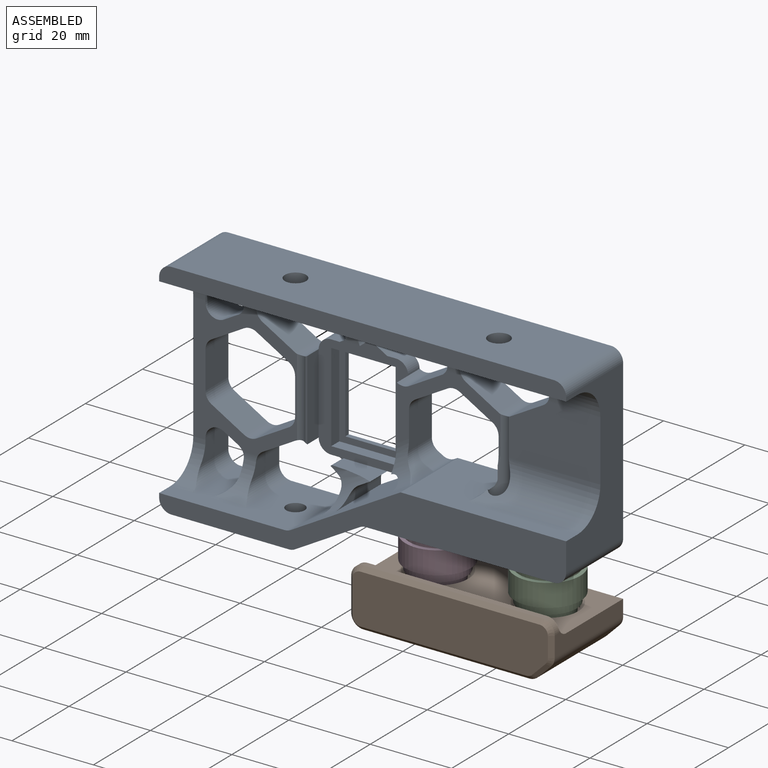
[diagram: assembled view]
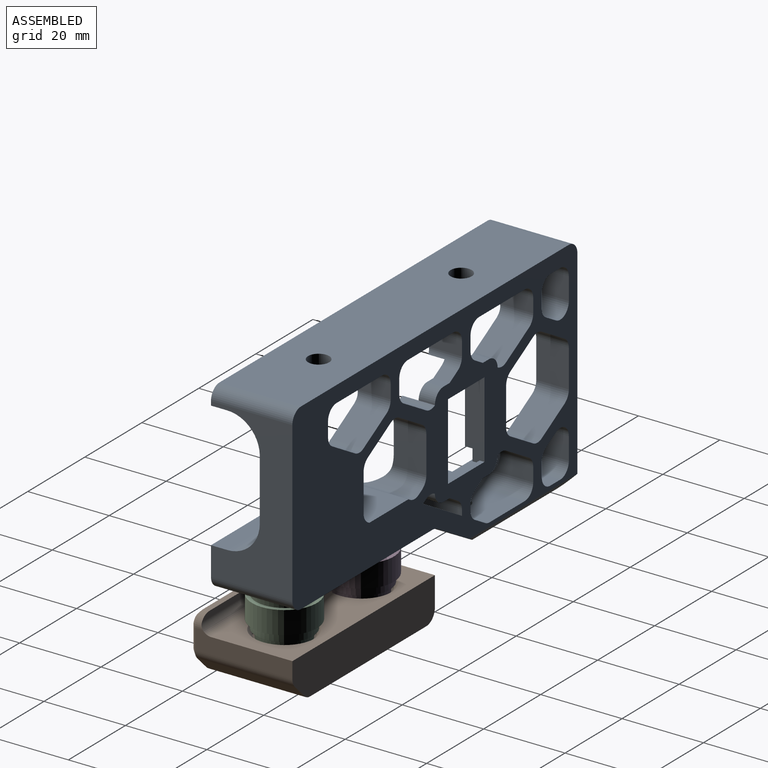
[diagram: assembled view, second angle]
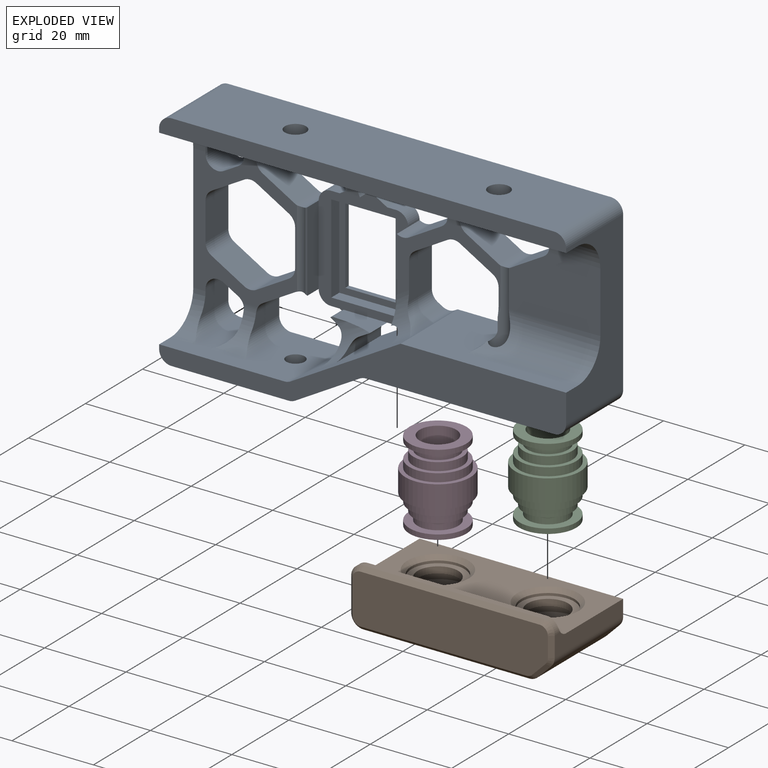
[diagram: exploded view]
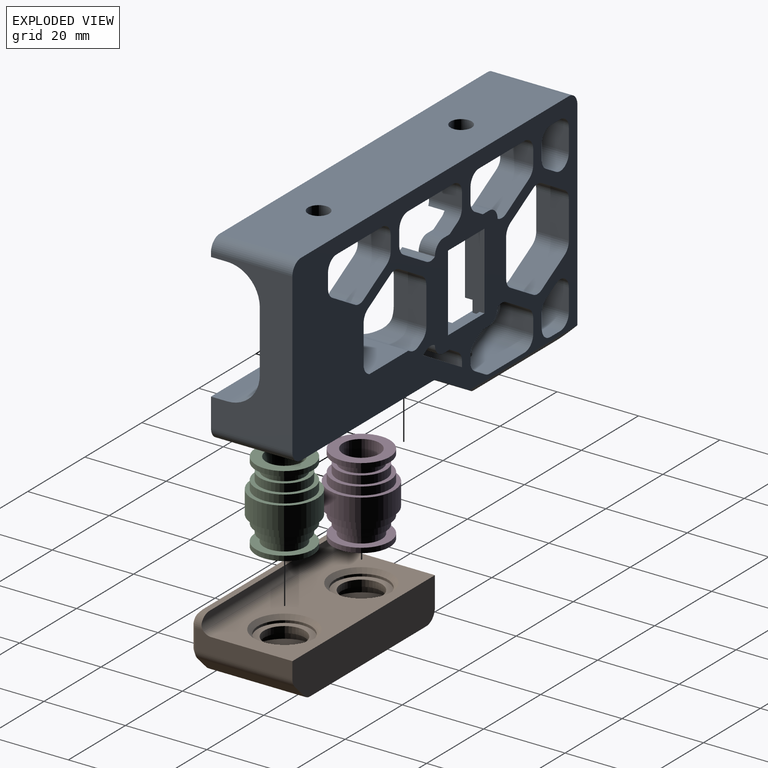
[diagram: exploded view, second angle]
ASSEMBLY  parts=4 mates=3
PART A: 161 faces, bbox 100.2x55.2x20.2 mm
  f0: plane 25.47x19.14mm, normal (0,0,1), area 118.8mm2, adj f23,f25,f31,f60,f66,f82,f83,f84
  f1: plane 4x2.83mm, normal (0.5,0.87,0), area 13.1mm2, adj f3,f5,f19,f160
  f2: plane 4x2.83mm, normal (-0.5,0.87,0), area 13.1mm2, adj f4,f19,f120,f160
  f3: cylinder r=3mm len=8.15mm, axis (0,0,-1), area 19.1mm2, adj f1,f19,f30,f64,f159,f160
  f4: plane 4x2.17mm, normal (0,1,0), area 8.7mm2, adj f2,f19,f153,f160
  f5: plane 4x2.17mm, normal (0,1,0), area 8.7mm2, adj f1,f19,f156,f160
  f6: plane 4x2.17mm, normal (0,-1,0), area 8.7mm2, adj f19,f79,f154,f160
  f7: plane 4x2.17mm, normal (0,-1,0), area 8.7mm2, adj f18,f19,f155,f160
  f8: plane 21.8x2.8mm, normal (-1,0,0), area 61mm2, adj f9,f11,f152,f160
  f9: plane 15.8x2.8mm, normal (0,-1,0), area 44.2mm2, adj f8,f10,f152,f160
  f10: plane 21.8x2.8mm, normal (1,0,0), area 61mm2, adj f9,f11,f152,f160
  f11: plane 15.8x2.8mm, normal (0,1,0), area 44.2mm2, adj f8,f10,f152,f160
  f12: plane 12.8x1.2mm, normal (0,1,0), area 15.4mm2, adj f13,f15,f19,f152
  f13: plane 18.8x1.2mm, normal (-1,0,0), area 22.6mm2, adj f12,f16,f19,f152
  f14: plane 19.63x0.47mm, normal (0,0,1), area 9.1mm2, adj f105,f119,f145,f157
  f15: plane 18.8x1.2mm, normal (1,0,0), area 22.6mm2, adj f12,f16,f19,f152
  f16: plane 12.8x1.2mm, normal (0,-1,0), area 15.4mm2, adj f13,f15,f19,f152
  f17: cylinder r=8mm len=14.16mm, axis (-0.87,-0.5,0), area 51.4mm2, adj f18,f56,f76,f79,f87,f96,f101,f104
  f18: plane 10.05x2.83mm, normal (0.5,-0.87,0), area 32.8mm2, adj f7,f17,f19,f96,f151
  f19: plane 100x52mm, normal (0,0,-1), area 2601.1mm2, adj f1,f2,f3,f4,f5,f6,f7,f12
  f20: cylinder r=2.6mm len=5.2mm, axis (0,-1,0), area 57.2mm2, adj f36,f148
  f21: cylinder r=2.6mm len=5.2mm, axis (0,-1,0), area 57.2mm2, adj f36,f147
  f22: plane 22.47x15mm, normal (0,0,1), area 306.6mm2, adj f37,f58,f59,f63,f128,f129,f144
  f23: cylinder r=8mm len=2.25mm, axis (-1,0,0), area 0.5mm2, adj f0,f83,f144
  f24: plane 31x25.47mm, normal (0,0,1), area 269.5mm2, adj f26,f27,f28,f29,f33,f67,f71,f72
  f25: cylinder r=8mm len=11.33mm, axis (-0.87,-0.5,0), area 49.4mm2, adj f0,f56,f81,f84,f86,f88,f95,f132
  f26: cylinder r=8mm len=9mm, axis (-1,0,0), area 54.8mm2, adj f24,f57,f75,f77,f98,f100,f102,f103
  f27: cylinder r=8mm len=8mm, axis (-1,0,0), area 45.9mm2, adj f24,f33,f57,f73,f99
  f28: cylinder r=8mm len=9mm, axis (1,0,0), area 54.8mm2, adj f24,f54,f68,f70,f112,f113,f116,f117
  f29: cylinder r=8mm len=8mm, axis (1,0,0), area 45.9mm2, adj f24,f33,f54,f72,f114
  f30: cylinder r=8mm len=9mm, axis (1,0,0), area 54.8mm2, adj f3,f54,f64,f69,f118,f120,f121,f159
  f31: cylinder r=8mm len=9mm, axis (1,0,0), area 54.8mm2, adj f0,f54,f61,f65,f122,f124,f125,f126
  f32: plane 100x4mm, normal (0,0,1), area 396.1mm2, adj f33,f36,f37,f54,f140,f141
  f33: plane 49x20mm, normal (-1,0,0), area 443.5mm2, adj f19,f24,f27,f29,f32,f35,f54,f57
  f34: plane 46.2x20mm, normal (0,-1,0), area 554.6mm2, adj f19,f35,f52,f53,f137,f138,f144
  f35: plane 100x20mm, normal (0,0,1), area 682.2mm2, adj f33,f34,f37,f38,f39,f55,f56,f57
  f36: plane 94x20mm, normal (0,1,0), area 1837.5mm2, adj f19,f20,f21,f32,f140,f141
  f37: plane 39x20mm, normal (1,0,0), area 435.5mm2, adj f19,f22,f32,f35,f54,f55,f58,f59
  f38: plane 28.88x17mm, normal (0,-1,0), area 475mm2, adj f35,f139,f142,f143,f146
  f39: plane 20x15.93mm, normal (0.5,-0.87,0), area 361.1mm2, adj f19,f35,f138,f139,f143
  f40: cylinder r=6.5mm len=13mm, axis (0,-1,0), area 24.5mm2, adj f41,f53
  f41: plane 13x13mm, normal (0,-1,0), area 54.2mm2, adj f40,f44
  f42: cylinder r=6.5mm len=13mm, axis (0,-1,0), area 24.5mm2, adj f43,f52
  f43: plane 13x13mm, normal (0,-1,0), area 54.2mm2, adj f42,f45
  f44: cylinder r=5mm len=10mm, axis (0,-1,0), area 50.3mm2, adj f41,f50
  f45: cylinder r=5mm len=10mm, axis (0,-1,0), area 50.3mm2, adj f43,f47
  f46: cylinder r=7.75mm len=15.5mm, axis (0,-1,0), area 121.7mm2, adj f47,f48
  f47: plane 15.5x15.5mm, normal (0,1,0), area 110.2mm2, adj f45,f46
  f48: plane 15.5x15.5mm, normal (0,-1,0), area 188.7mm2, adj f46
  f49: cylinder r=7.75mm len=15.5mm, axis (0,-1,0), area 121.7mm2, adj f50,f51
  f50: plane 15.5x15.5mm, normal (0,1,0), area 110.2mm2, adj f44,f49
  f51: plane 15.5x15.5mm, normal (0,-1,0), area 188.7mm2, adj f49
  f52: cone r=7.5mm half-angle=45deg, axis (0,-1,0), area 62.2mm2, adj f34,f42
  f53: cone r=6.5mm half-angle=45deg, axis (0,-1,0), area 62.2mm2, adj f34,f40
  f54: plane 100x20mm, normal (0,-1,0), area 1033.9mm2, adj f19,f28,f29,f30,f31,f32,f33,f37
  f55: plane 40.68x20mm, normal (0,1,0), area 381.7mm2, adj f19,f35,f37,f56,f58,f80
  f56: plane 27.02x20mm, normal (-0.5,0.87,0), area 457.6mm2, adj f17,f19,f25,f35,f55,f86,f87,f101
  f57: plane 30.8x20mm, normal (0,1,0), area 360.2mm2, adj f19,f26,f27,f33,f35,f99,f100,f102
  f58: cylinder r=8mm len=26.99mm, axis (-1,0,0), area 293.1mm2, adj f22,f37,f55,f80,f131,f144
  f59: cylinder r=8mm len=15.5mm, axis (1,0,0), area 165.6mm2, adj f22,f37,f54,f62,f127,f129
  f60: plane 8x8mm, normal (0.5,0.87,0), area 73.9mm2, adj f0,f19,f125,f128
  f61: plane 9.76x3.47mm, normal (1,0,0), area 30.5mm2, adj f19,f31,f125,f126
  f62: plane 9.76x3.47mm, normal (-1,0,0), area 30.5mm2, adj f19,f59,f127,f129
  f63: plane 8x8mm, normal (-0.5,0.87,0), area 73.9mm2, adj f19,f22,f128,f129
  f64: plane 9.76x3.47mm, normal (1,0,0), area 30.5mm2, adj f3,f19,f30,f121
  f65: plane 9.76x3.47mm, normal (-1,0,0), area 30.5mm2, adj f19,f31,f122,f124
  f66: plane 8x8mm, normal (-0.5,0.87,0), area 73.9mm2, adj f0,f19,f123,f124
  f67: plane 8x8mm, normal (0.5,0.87,0), area 73.9mm2, adj f19,f24,f116,f119
  f68: plane 9.76x3.47mm, normal (1,0,0), area 30.5mm2, adj f19,f28,f116,f117
  f69: plane 9.76x3.47mm, normal (-1,0,0), area 30.5mm2, adj f19,f30,f118,f120
  f70: plane 9.76x3.47mm, normal (-1,0,0), area 30.5mm2, adj f19,f28,f112,f113
  f71: plane 8x3.5mm, normal (-0.5,0.87,0), area 32.3mm2, adj f19,f24,f113,f115
  f72: plane 9.76x5.49mm, normal (1,0,0), area 46.7mm2, adj f19,f24,f29,f114,f115
  f73: plane 9.76x5.49mm, normal (1,0,0), area 46.7mm2, adj f19,f24,f27,f97,f99
  f74: plane 8x3.5mm, normal (-0.5,-0.87,0), area 32.3mm2, adj f19,f24,f97,f98
  f75: plane 9.76x3.47mm, normal (-1,0,0), area 30.5mm2, adj f19,f26,f98,f100
  f76: plane 11.38x1.37mm, normal (-1,0,0), area 14.2mm2, adj f17,f19,f101,f104
  f77: plane 9.76x3.47mm, normal (1,0,0), area 30.5mm2, adj f19,f26,f102,f103
  f78: plane 8x8mm, normal (0.5,-0.87,0), area 73.9mm2, adj f19,f24,f103,f105
  f79: plane 8.37x2.85mm, normal (-0.5,-0.87,0), area 24.2mm2, adj f6,f17,f19,f104,f158,f160
  f80: plane 16x0.49mm, normal (-0.5,0.87,0), area 8.3mm2, adj f19,f55,f58,f131
  f81: plane 11.38x1.2mm, normal (0.5,0.87,0), area 14.2mm2, adj f19,f25,f132,f133
  f82: plane 8x8mm, normal (-0.5,-0.87,0), area 73.9mm2, adj f0,f19,f130,f134
  f83: plane 9.24x8.32mm, normal (-1,0,0), area 75.1mm2, adj f0,f19,f23,f130,f131,f144
  f84: plane 9.25x8.37mm, normal (1,0,0), area 74.2mm2, adj f0,f19,f25,f133,f135
  f85: plane 8x8mm, normal (0.5,-0.87,0), area 73.9mm2, adj f0,f19,f134,f135
  f86: plane 16x1.16mm, normal (-0.5,-0.87,0), area 17.6mm2, adj f19,f25,f56,f95
  f87: plane 16x1.33mm, normal (1,0,0), area 17.6mm2, adj f17,f19,f56,f96
  f88: plane 19.63x6.05mm, normal (-1,0,0), area 82.5mm2, adj f0,f25,f95,f123,f160
  f89: plane 8x8mm, normal (-0.5,0.87,0), area 73.9mm2, adj f19,f24,f106,f110
  f90: plane 8x8mm, normal (0.5,0.87,0), area 73.9mm2, adj f19,f24,f106,f107
  f91: plane 9.24x8mm, normal (1,0,0), area 73.9mm2, adj f19,f24,f107,f108
  f92: plane 8x8mm, normal (0.5,-0.87,0), area 73.9mm2, adj f19,f24,f108,f109
  f93: plane 8x8mm, normal (-0.5,-0.87,0), area 73.9mm2, adj f19,f24,f109,f111
  f94: plane 9.24x8mm, normal (-1,0,0), area 73.9mm2, adj f19,f24,f110,f111
  f95: cylinder r=3mm len=11.86mm, axis (0,0,-1), area 33.3mm2, adj f19,f25,f86,f88,f155
  f96: cylinder r=3mm len=11.86mm, axis (0,0,-1), area 33.3mm2, adj f17,f18,f19,f87
  f97: cylinder r=3mm len=8mm, axis (0,0,-1), area 50.3mm2, adj f19,f24,f73,f74
  f98: cylinder r=3mm len=8.15mm, axis (0,0,-1), area 25.3mm2, adj f19,f24,f26,f74,f75
  f99: cylinder r=3mm len=16mm, axis (0,0,1), area 59.1mm2, adj f19,f27,f57,f73
  f100: cylinder r=3mm len=16mm, axis (0,0,1), area 59.1mm2, adj f19,f26,f57,f75
  f101: cylinder r=3mm len=16mm, axis (0,0,1), area 42.9mm2, adj f17,f19,f56,f76
  f102: cylinder r=3mm len=16mm, axis (0,0,1), area 59.1mm2, adj f19,f26,f57,f77
  f103: cylinder r=3mm len=8.15mm, axis (0,0,-1), area 25.3mm2, adj f19,f24,f26,f77,f78
  f104: cylinder r=3mm len=10.05mm, axis (0,0,-1), area 28.5mm2, adj f17,f19,f76,f79
  f105: cylinder r=3mm len=8mm, axis (0,0,-1), area 24.8mm2, adj f14,f19,f24,f78,f145,f154,f157
  f106: cylinder r=3mm len=8mm, axis (0,0,-1), area 25.1mm2, adj f19,f24,f89,f90
  f107: cylinder r=3mm len=8mm, axis (0,0,-1), area 25.1mm2, adj f19,f24,f90,f91
  f108: cylinder r=3mm len=8mm, axis (0,0,-1), area 25.1mm2, adj f19,f24,f91,f92
  f109: cylinder r=3mm len=8mm, axis (0,0,-1), area 25.1mm2, adj f19,f24,f92,f93
  f110: cylinder r=3mm len=8mm, axis (0,0,-1), area 25.1mm2, adj f19,f24,f89,f94
  f111: cylinder r=3mm len=8mm, axis (0,0,-1), area 25.1mm2, adj f19,f24,f93,f94
  f112: cylinder r=3mm len=16mm, axis (0,0,1), area 59.1mm2, adj f19,f28,f54,f70
  f113: cylinder r=3mm len=8.15mm, axis (0,0,-1), area 25.3mm2, adj f19,f24,f28,f70,f71
  f114: cylinder r=3mm len=16mm, axis (0,0,1), area 59.1mm2, adj f19,f29,f54,f72
  f115: cylinder r=3mm len=8mm, axis (0,0,-1), area 50.3mm2, adj f19,f24,f71,f72
  f116: cylinder r=3mm len=8.15mm, axis (0,0,-1), area 25.3mm2, adj f19,f24,f28,f67,f68
  f117: cylinder r=3mm len=16mm, axis (0,0,1), area 59.1mm2, adj f19,f28,f54,f68
  f118: cylinder r=3mm len=16mm, axis (0,0,1), area 59.1mm2, adj f19,f30,f54,f69
  f119: cylinder r=3mm len=8mm, axis (0,0,-1), area 24.8mm2, adj f14,f19,f24,f67,f145,f153,f157
  f120: cylinder r=3mm len=8.15mm, axis (0,0,-1), area 19.1mm2, adj f2,f19,f30,f69,f159,f160
  f121: cylinder r=3mm len=16mm, axis (0,0,1), area 59.1mm2, adj f19,f30,f54,f64
  f122: cylinder r=3mm len=16mm, axis (0,0,1), area 59.1mm2, adj f19,f31,f54,f65
  f123: cylinder r=3mm len=8mm, axis (0,0,-1), area 25.1mm2, adj f0,f19,f66,f88,f156
  f124: cylinder r=3mm len=8.15mm, axis (0,0,-1), area 25.3mm2, adj f0,f19,f31,f65,f66
  f125: cylinder r=3mm len=8.15mm, axis (0,0,-1), area 25.3mm2, adj f0,f19,f31,f60,f61
  f126: cylinder r=3mm len=16mm, axis (0,0,1), area 59.1mm2, adj f19,f31,f54,f61
  f127: cylinder r=3mm len=16mm, axis (0,0,1), area 59.1mm2, adj f19,f54,f59,f62
  f128: cylinder r=3mm len=8mm, axis (0,0,-1), area 24.8mm2, adj f0,f19,f22,f60,f63,f144
  f129: cylinder r=3mm len=8.15mm, axis (0,0,-1), area 25.3mm2, adj f19,f22,f59,f62,f63
  f130: cylinder r=3mm len=8mm, axis (0,0,-1), area 25.1mm2, adj f0,f19,f82,f83
  f131: cylinder r=3mm len=13.89mm, axis (0,0,-1), area 32.3mm2, adj f19,f58,f80,f83,f144
  f132: cylinder r=3mm len=16mm, axis (0,0,-1), area 42.9mm2, adj f19,f25,f56,f81
  f133: cylinder r=3mm len=10.05mm, axis (0,0,-1), area 28.5mm2, adj f19,f25,f81,f84
  f134: cylinder r=3mm len=8mm, axis (0,0,-1), area 25.1mm2, adj f0,f19,f82,f85
  f135: cylinder r=3mm len=8mm, axis (0,0,-1), area 25.1mm2, adj f0,f19,f84,f85
  f136: cylinder r=3mm len=20mm, axis (0,0,-1), area 31.4mm2, adj f19,f35,f56,f57
  f137: cylinder r=3mm len=20mm, axis (0,0,-1), area 94.2mm2, adj f19,f34,f35,f37
  f138: cylinder r=3mm len=20mm, axis (0,0,-1), area 31.4mm2, adj f19,f34,f35,f39
  f139: cylinder r=3mm len=17.4mm, axis (0,0,1), area 27mm2, adj f35,f38,f39,f143
  f140: cylinder r=3mm len=20mm, axis (0,0,1), area 94.2mm2, adj f19,f32,f33,f36
  f141: cylinder r=3mm len=20mm, axis (0,0,-1), area 94.2mm2, adj f19,f32,f36,f37
  f142: cylinder r=3mm len=20mm, axis (0,0,-1), area 85.2mm2, adj f33,f35,f38,f143
  f143: plane 38.07x3.2mm, normal (0,-0.71,-0.71), area 146.9mm2, adj f19,f38,f39,f139,f142
  f144: cylinder r=2.25mm len=27.1mm, axis (0,-1,0), area 204.5mm2, adj f0,f22,f23,f34,f58,f83,f128,f131
  f145: cylinder r=2.25mm len=19.19mm, axis (0,-1,0), area 40.6mm2, adj f14,f24,f105,f119
  f146: cylinder r=2.25mm len=4.5mm, axis (0,-1,0), area 56.5mm2, adj f38,f57
  f147: plane 10x10mm, normal (0,-1,0), area 57.3mm2, adj f21,f150
  f148: plane 10x10mm, normal (0,-1,0), area 57.3mm2, adj f20,f149
  f149: cone r=5mm half-angle=45deg, axis (0,-1,0), area 23.3mm2, adj f54,f148
  f150: cone r=5mm half-angle=45deg, axis (0,-1,0), area 23.3mm2, adj f54,f147
  f151: plane 10.69x6.05mm, normal (0,1,0), area 49.6mm2, adj f17,f18,f158,f160
  f152: plane 21.8x15.8mm, normal (0,0,1), area 103.8mm2, adj f8,f9,f10,f11,f12,f13,f15,f16
  f153: cylinder r=3mm len=4mm, axis (0,0,-1), area 18.8mm2, adj f4,f19,f119,f160
  f154: cylinder r=3mm len=4mm, axis (0,0,-1), area 18.8mm2, adj f6,f19,f105,f160
  f155: cylinder r=3mm len=4mm, axis (0,0,-1), area 18.8mm2, adj f7,f19,f95,f160
  f156: cylinder r=3mm len=4mm, axis (0,0,-1), area 18.8mm2, adj f5,f19,f123,f160
  f157: plane 19.63x4mm, normal (1,0,0), area 78.5mm2, adj f14,f105,f119,f160
  f158: plane 4x0.49mm, normal (-0.5,0.87,0), area 2.2mm2, adj f17,f79,f151,f160
  f159: plane 4x3.84mm, normal (0,-1,0), area 15.4mm2, adj f3,f30,f120,f160
  f160: plane 28.58x22mm, normal (0,0,1), area 230.6mm2, adj f1,f2,f3,f4,f5,f6,f7,f8
PART B: 39 faces, bbox 50x14.2x25 mm
  f0: plane 24x8.2mm, normal (-1,0,0), area 175.4mm2, adj f4,f5,f22,f27,f28,f29
  f1: plane 24x4.96mm, normal (1,0,0), area 97.6mm2, adj f4,f5,f22,f25,f26,f36
  f2: cylinder r=5mm len=10mm, axis (0,1,0), area 50.3mm2, adj f8,f15
  f3: cylinder r=5mm len=10mm, axis (0,1,0), area 50.3mm2, adj f10,f12
  f4: plane 50x20mm, normal (0,1,0), area 646.6mm2, adj f0,f1,f5,f17,f18,f22
  f5: plane 50x10.2mm, normal (0,0,-1), area 495.2mm2, adj f0,f1,f4,f6,f23,f24,f25,f28
  f6: plane 40.76x24mm, normal (0,-1,0), area 978.2mm2, adj f5,f24,f28,f33
  f7: cylinder r=6.5mm len=13mm, axis (0,1,0), area 24.5mm2, adj f8,f18
  f8: plane 13x13mm, normal (0,1,0), area 54.2mm2, adj f2,f7
  f9: cylinder r=6.5mm len=13mm, axis (0,1,0), area 24.5mm2, adj f10,f17
  f10: plane 13x13mm, normal (0,1,0), area 54.2mm2, adj f3,f9
  f11: cylinder r=7.75mm len=15.5mm, axis (0,1,0), area 121.7mm2, adj f12,f13
  f12: plane 15.5x15.5mm, normal (0,-1,0), area 110.2mm2, adj f3,f11
  f13: plane 15.5x15.5mm, normal (0,1,0), area 188.7mm2, adj f11
  f14: cylinder r=7.75mm len=15.5mm, axis (0,1,0), area 121.7mm2, adj f15,f16
  f15: plane 15.5x15.5mm, normal (0,-1,0), area 110.2mm2, adj f2,f14
  f16: plane 15.5x15.5mm, normal (0,1,0), area 188.7mm2, adj f14
  f17: cone r=6.5mm half-angle=45deg, axis (0,1,0), area 62.2mm2, adj f4,f9
  f18: cone r=7.5mm half-angle=45deg, axis (0,1,0), area 62.2mm2, adj f4,f7
  f19: plane 48x12.2mm, normal (0,0,1), area 573.1mm2, adj f29,f30,f31,f32,f33,f34,f35,f36
  f20: plane 44x1.5mm, normal (0,1,0), area 66mm2, adj f21,f26,f27,f32
  f21: plane 49.2x1.5mm, normal (0,0,-1), area 71.5mm2, adj f20,f22,f26,f27
  f22: cylinder r=2.5mm len=50mm, axis (-1,0,0), area 196mm2, adj f0,f1,f4,f21,f26,f27
  f23: plane 24x3.24mm, normal (0.71,-0.71,0), area 110.1mm2, adj f5,f24,f25,f37
  f24: cylinder r=3mm len=24mm, axis (0,0,1), area 56.5mm2, adj f5,f6,f23,f35
  f25: cylinder r=3mm len=24mm, axis (0,0,-1), area 56.5mm2, adj f1,f5,f23,f38
  f26: cylinder r=3mm len=3mm, axis (0,0,1), area 7.3mm2, adj f1,f20,f21,f22,f34
  f27: cylinder r=3mm len=3mm, axis (0,0,1), area 7.3mm2, adj f0,f20,f21,f22,f30
  f28: cylinder r=3mm len=24mm, axis (0,0,-1), area 113.1mm2, adj f0,f5,f6,f31
  f29: plane 8.2x1mm, normal (-0.71,0,0.71), area 11.6mm2, adj f0,f19,f30,f31
  f30: cone r=2mm half-angle=45deg, axis (0,0,-1), area 5.6mm2, adj f19,f27,f29,f32
  f31: cone r=2mm half-angle=45deg, axis (0,0,-1), area 5.6mm2, adj f19,f28,f29,f33
  f32: plane 44x1mm, normal (0,0.71,0.71), area 62.2mm2, adj f19,f20,f30,f34
  f33: plane 40.76x1mm, normal (0,-0.71,0.71), area 57.6mm2, adj f6,f19,f31,f35
  f34: cone r=2mm half-angle=45deg, axis (0,0,-1), area 5.6mm2, adj f19,f26,f32,f36
  f35: cone r=2mm half-angle=45deg, axis (0,0,-1), area 2.8mm2, adj f19,f24,f33,f37
  f36: plane 4.96x1mm, normal (0.71,0,0.71), area 7mm2, adj f1,f19,f34,f38
  f37: plane 3.95x3.95mm, normal (0.5,-0.5,0.71), area 6.5mm2, adj f19,f23,f35,f38
  f38: cone r=2mm half-angle=45deg, axis (0,0,-1), area 2.8mm2, adj f19,f25,f36,f37
PART C: 20 faces, bbox 16x16x20 mm
  f0: plane 14x14mm, normal (0,0,-1), area 75.4mm2, adj f1,f18
  f1: cylinder r=7mm len=14mm, axis (0,0,-1), area 52.8mm2, adj f0,f2
  f2: plane 14x14mm, normal (0,0,1), area 90.3mm2, adj f1,f19
  f3: plane 14x14mm, normal (0,0,-1), area 90.3mm2, adj f4,f19
  f4: cylinder r=7mm len=14mm, axis (0,0,-1), area 52.8mm2, adj f3,f5
  f5: plane 14x14mm, normal (0,0,1), area 75.4mm2, adj f4,f6
  f6: cylinder r=5mm len=10mm, axis (0,0,-1), area 62.8mm2, adj f5,f7
  f7: plane 12x12mm, normal (0,0,-1), area 34.6mm2, adj f6,f8
  f8: cylinder r=6mm len=12mm, axis (0,0,-1), area 75.4mm2, adj f7,f9
  f9: plane 14x14mm, normal (0,0,-1), area 40.8mm2, adj f8,f10
  f10: cylinder r=7mm len=14mm, axis (0,0,-1), area 88mm2, adj f9,f11
  f11: plane 16x16mm, normal (0,0,-1), area 47.1mm2, adj f10,f12
  f12: cylinder r=8mm len=16mm, axis (0,0,-1), area 281.5mm2, adj f11,f13
  f13: plane 16x16mm, normal (0,0,1), area 47.1mm2, adj f12,f14
  f14: cylinder r=7mm len=14mm, axis (0,0,-1), area 88mm2, adj f13,f15
  f15: plane 14x14mm, normal (0,0,1), area 40.8mm2, adj f14,f16
  f16: cylinder r=6mm len=12mm, axis (0,0,-1), area 75.4mm2, adj f15,f17
  f17: plane 12x12mm, normal (0,0,1), area 34.6mm2, adj f16,f18
  f18: cylinder r=5mm len=10mm, axis (0,0,-1), area 62.8mm2, adj f0,f17
  f19: cylinder r=4.5mm len=20mm, axis (0,0,1), area 565.5mm2, adj f2,f3
PART D: same geometry as C
PLACE A rot(axis=(1,0,0),90deg) t=(-13.22,4.77,34.42)mm
PLACE B rot(axis=(1,0,0),90deg) t=(-13.22,4.77,24.02)mm
PLACE C rot(axis=(-0.02,0.3,-0.95),0deg) t=(25.28,-5.23,1.72)mm
PLACE D rot(axis=(0.61,0.71,-0.34),0deg) t=(-1.72,-5.23,1.72)mm
MATE fastened D.f1 <-> B.f3  axis (0,0,-1) through (-1.72,-5.23,4.92)mm
MATE fastened C.f1 <-> A.f53  axis (0,0,1) through (25.28,-5.23,18.52)mm
MATE fastened C.f1 <-> B.f7  axis (0,0,-1) through (25.28,-5.23,4.92)mm
